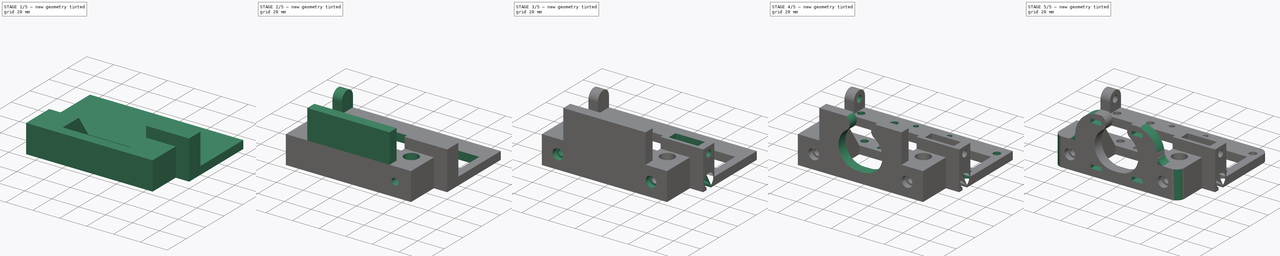
[diagram: build sequence overview — one tinted view per stage of 5, left to right]
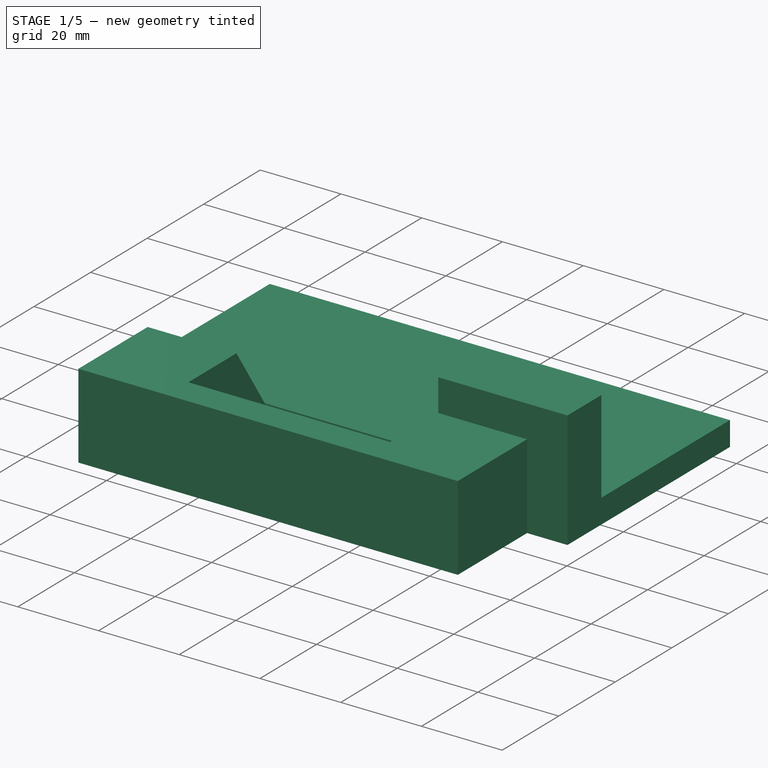
[diagram: stage 1 of 5 — iso view after this stage's code; geometry added in this stage tinted green]
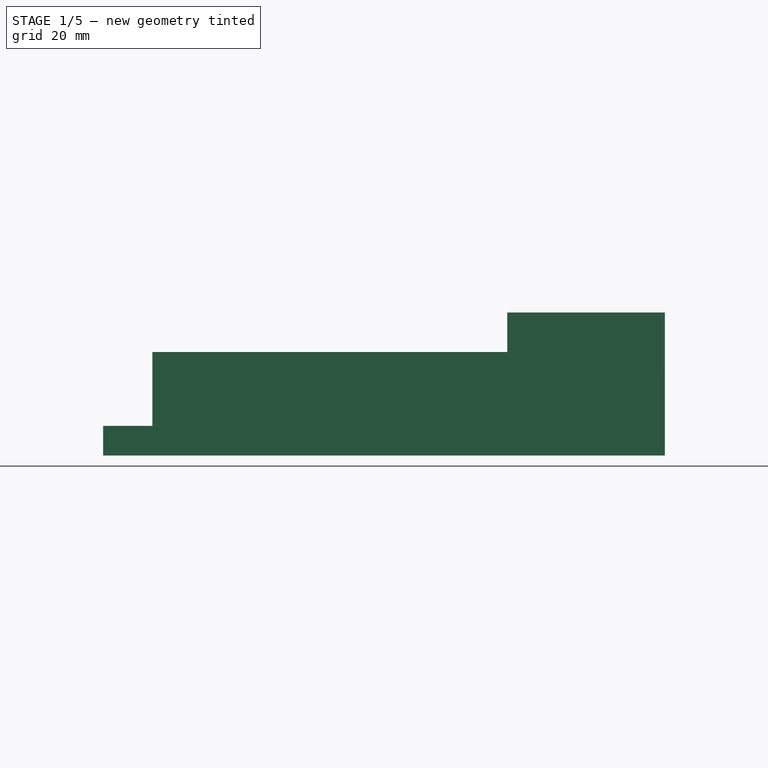
[diagram: stage 1 of 5 — front view after this stage's code; geometry added in this stage tinted green]
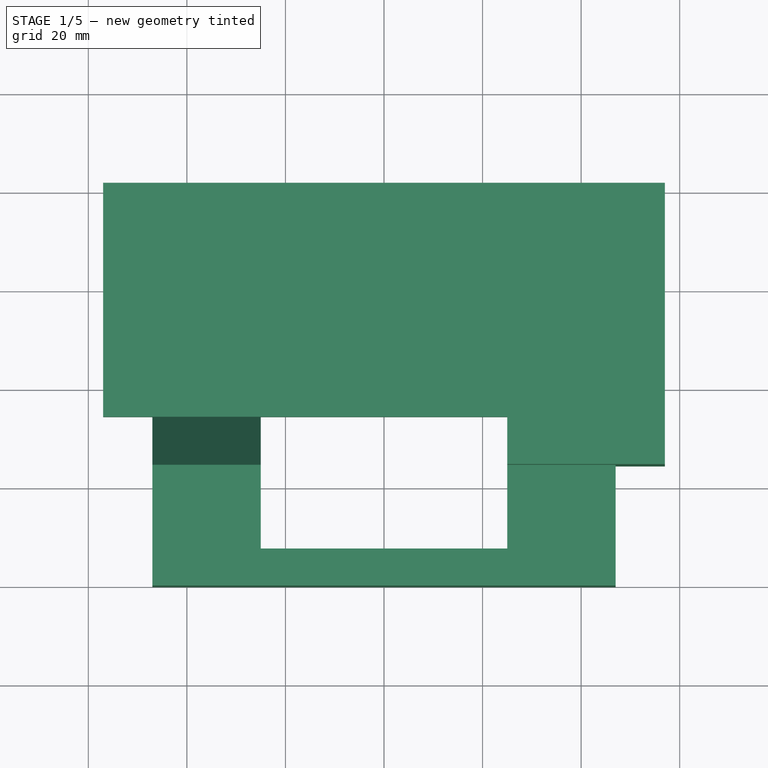
[diagram: stage 1 of 5 — top view after this stage's code; geometry added in this stage tinted green]
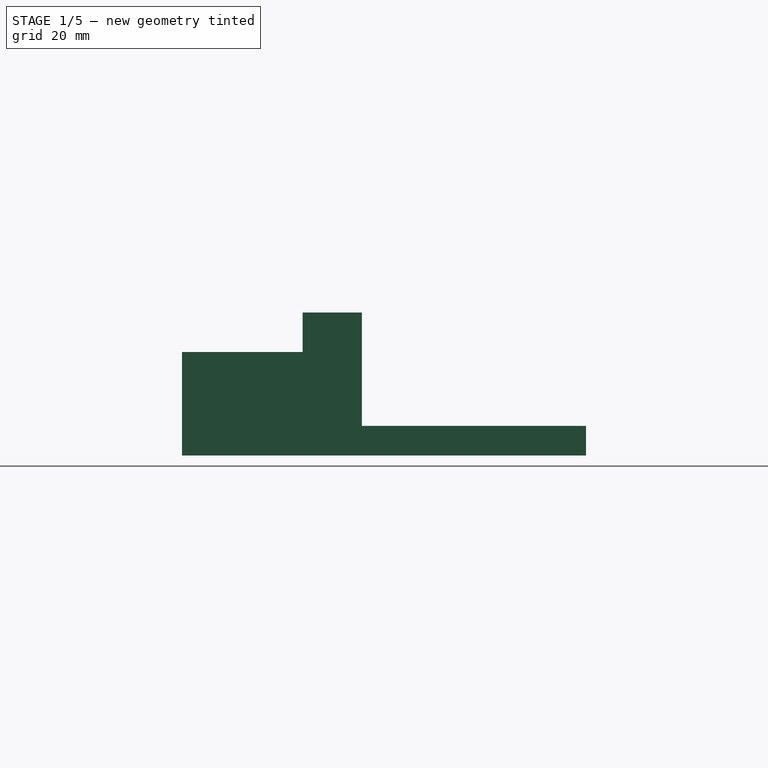
[diagram: stage 1 of 5 — right view after this stage's code; geometry added in this stage tinted green]
FCSTD DOCUMENT
Label: X_MotorForSpring
objects: Sketcher::SketchObject×20, PartDesign::Pocket×16, PartDesign::Mirrored×8, PartDesign::Pad×4, PartDesign::LinearPattern×4, PartDesign::MultiTransform×3, PartDesign::Fillet×2, Part::Feature×1
note: 78 computed .brp shape members not serialized (recipe doc carries the construction recipe); baked Part::Feature solids carry a one-line shape summary decoded from their .brp

FEATURE [Sketcher::SketchObject] Sketch
  sketch-geometry (4):
    g0: LineSegment StartX=-57 StartY=0 StartZ=0 EndX=57 EndY=0 EndZ=0
    g1: LineSegment StartX=57 StartY=0 StartZ=0 EndX=57 EndY=82 EndZ=0
    g2: LineSegment StartX=57 StartY=82 StartZ=0 EndX=-57 EndY=82 EndZ=0
    g3: LineSegment StartX=-57 StartY=82 StartZ=0 EndX=-57 EndY=0 EndZ=0
  constraints (12):
    c: Coincident(g0,g1)
    c: Coincident(g1,g2)
    c: Coincident(g2,g3)
    c: Coincident(g3,g0)
    c: Horizontal(g0)
    c: Horizontal(g2)
    c: Vertical(g1)
    c: Vertical(g3)
    c: DistanceX(g2) = -114
    c: DistanceY(g1) = 82
    c: Symmetric(g0,g0,g-2)
    c: PointOnObject(g0,g-1)
FEATURE [PartDesign::Pad] Pad
  Length = 21
  Length2 = 100
  Sketch = -> Sketch
  Type = 0
FEATURE [Sketcher::SketchObject] Sketch002  label="Sketch001"
  ExternalGeometry = -> [Pad]
  Placement = pos=(57,0,0) rot=(0.57735,0.57735,0.57735;2.0944rad)
  Support = -> Pad [Face2]
  sketch-geometry (5):
    g0: LineSegment StartX=23.8333 StartY=22 StartZ=0 EndX=83 EndY=22 EndZ=0
    g1: LineSegment StartX=83 StartY=22 StartZ=0 EndX=83 EndY=6 EndZ=0
    g2: LineSegment StartX=83 StartY=6 StartZ=0 EndX=34.5 EndY=6 EndZ=0
    g3: LineSegment StartX=23.8333 StartY=22 StartZ=0 EndX=34.5 EndY=6 EndZ=0
    g4: GeomPoint [constr] X=24.5 Y=21 Z=0
  constraints (14):
    c: Coincident(g0,g1)
    c: Coincident(g1,g2)
    c: Horizontal(g0)
    c: Horizontal(g2)
    c: Vertical(g1)
    c: Coincident(g2,g3)
    c: DistanceY(g-3,g1) = 6
    c: DistanceX(g-3,g2) = -47.5
    c: DistanceX(g-3,g0) = 1
    c: DistanceY(g0,g-3) = -1
    c: Coincident(g3,g0)
    c: PointOnObject(g4,g3)
    c: DistanceX(g4,g2) = 10
    c: DistanceY(g-1,g4) = 21
FEATURE [PartDesign::Pocket] Pocket
  Length = 5
  Sketch = -> Sketch002
  Type = 1
FEATURE [Sketcher::SketchObject] Sketch011
  ExternalGeometry = -> [Pocket]
  Placement = pos=(0,0,21) rot=(0,0,1;0rad)
  Support = -> Pocket [Face5]
  sketch-geometry (4):
    g0: LineSegment StartX=47 StartY=34.5 StartZ=0 EndX=58 EndY=34.5 EndZ=0
    g1: LineSegment StartX=58 StartY=34.5 StartZ=0 EndX=58 EndY=-1 EndZ=0
    g2: LineSegment StartX=58 StartY=-1 StartZ=0 EndX=47 EndY=-1 EndZ=0
    g3: LineSegment StartX=47 StartY=-1 StartZ=0 EndX=47 EndY=34.5 EndZ=0
  constraints (12):
    c: Coincident(g0,g1)
    c: Coincident(g1,g2)
    c: Coincident(g2,g3)
    c: Coincident(g3,g0)
    c: Horizontal(g0)
    c: Horizontal(g2)
    c: Vertical(g1)
    c: Vertical(g3)
    c: PointOnObject(g0,g-3)
    c: DistanceX(g2,g-4) = 10
    c: DistanceX(g-3,g0) = 1
    c: DistanceY(g-4,g1) = -1
FEATURE [PartDesign::Pocket] Pocket001
  Length = 5
  Sketch = -> Sketch011
  Type = 1
FEATURE [PartDesign::Mirrored] Mirrored
  Originals = -> [Pocket001]
  StdMirrorPlane = YZ
FEATURE [Sketcher::SketchObject] Sketch003
  ExternalGeometry = -> [Mirrored]
  Placement = pos=(0,0,21) rot=(0,0,1;0rad)
  Support = -> Mirrored [Face12]
  sketch-geometry (4):
    g0: LineSegment StartX=-25 StartY=34.5 StartZ=0 EndX=25 EndY=34.5 EndZ=0
    g1: LineSegment StartX=25 StartY=34.5 StartZ=0 EndX=25 EndY=7.5 EndZ=0
    g2: LineSegment StartX=25 StartY=7.5 StartZ=0 EndX=-25 EndY=7.5 EndZ=0
    g3: LineSegment StartX=-25 StartY=7.5 StartZ=0 EndX=-25 EndY=34.5 EndZ=0
  constraints (12):
    c: Coincident(g0,g1)
    c: Coincident(g1,g2)
    c: Coincident(g2,g3)
    c: Coincident(g3,g0)
    c: Horizontal(g0)
    c: Horizontal(g2)
    c: Vertical(g1)
    c: Vertical(g3)
    c: Symmetric(g0,g0,g-2)
    c: DistanceX(g2) = -50
    c: PointOnObject(g0,g-3)
    c: DistanceY(g2,g-4) = -7.5
FEATURE [PartDesign::Pocket] Pocket002
  Length = 5
  Sketch = -> Sketch003
  Type = 1
FEATURE [Sketcher::SketchObject] Sketch016  label="Sketch028"
  ExternalGeometry = -> [Pocket002]
  Placement = pos=(0,0,0) rot=(1,0,0;3.14159rad)
  Support = -> Pocket002 [Face3]
  sketch-geometry (4):
    g0: LineSegment StartX=25 StartY=-24.5 StartZ=0 EndX=57 EndY=-24.5 EndZ=0
    g1: LineSegment StartX=57 StartY=-24.5 StartZ=0 EndX=57 EndY=-36.5 EndZ=0
    g2: LineSegment StartX=57 StartY=-36.5 StartZ=0 EndX=25 EndY=-36.5 EndZ=0
    g3: LineSegment StartX=25 StartY=-36.5 StartZ=0 EndX=25 EndY=-24.5 EndZ=0
  constraints (12):
    c: Coincident(g0,g1)
    c: Coincident(g1,g2)
    c: Coincident(g2,g3)
    c: Coincident(g3,g0)
    c: Horizontal(g0)
    c: Horizontal(g2)
    c: Vertical(g1)
    c: Vertical(g3)
    c: DistanceY(g1) = -12
    c: DistanceX(g0) = 32
    c: PointOnObject(g-3,g3)
    c: DistanceY(g-3,g2) = -2
FEATURE [PartDesign::Pad] Pad001
  Length = 29
  Length2 = 100
  Reversed = true
  Sketch = -> Sketch016
  Type = 0
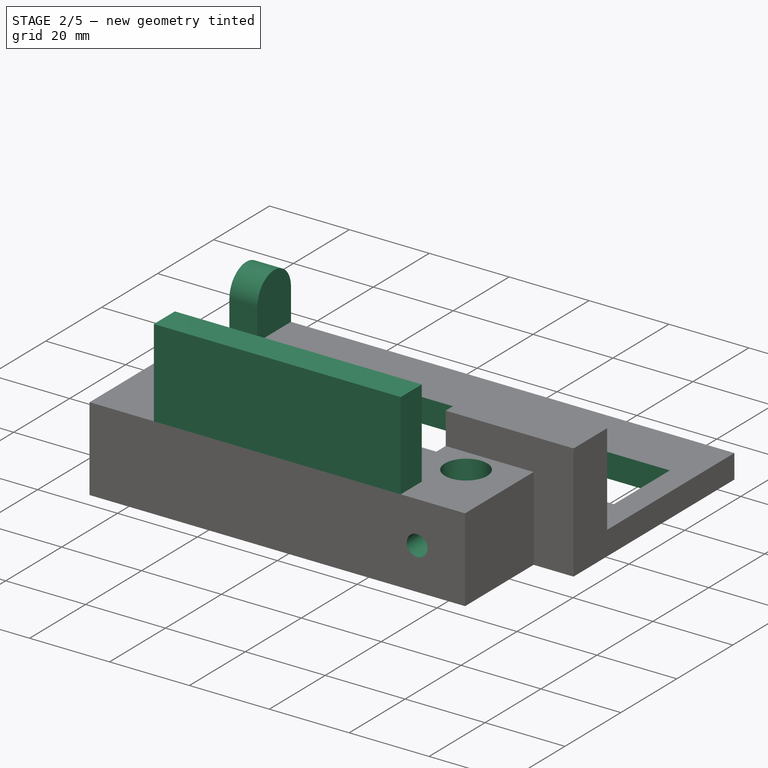
[diagram: stage 2 of 5 — iso view after this stage's code; geometry added in this stage tinted green]
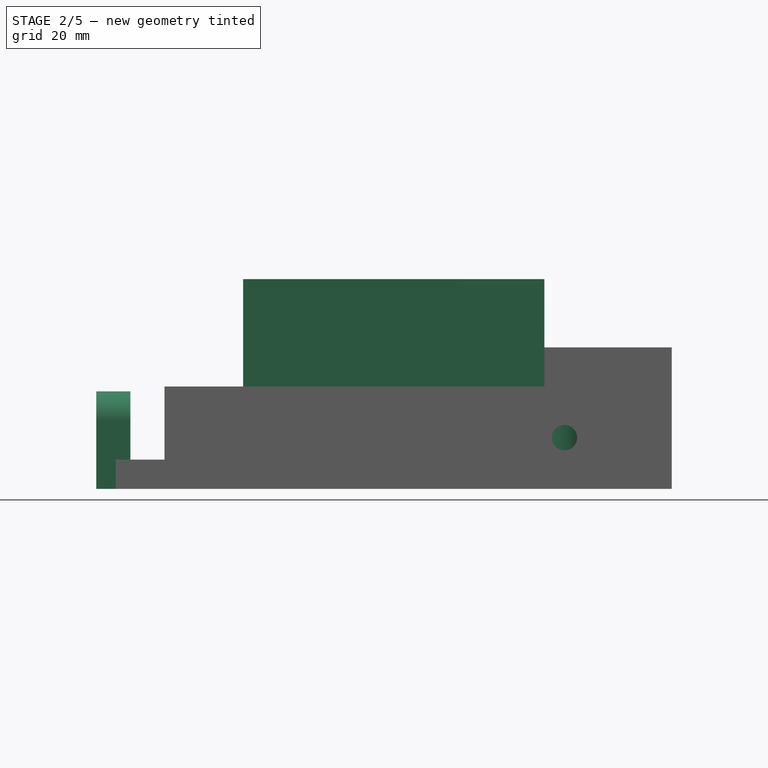
[diagram: stage 2 of 5 — front view after this stage's code; geometry added in this stage tinted green]
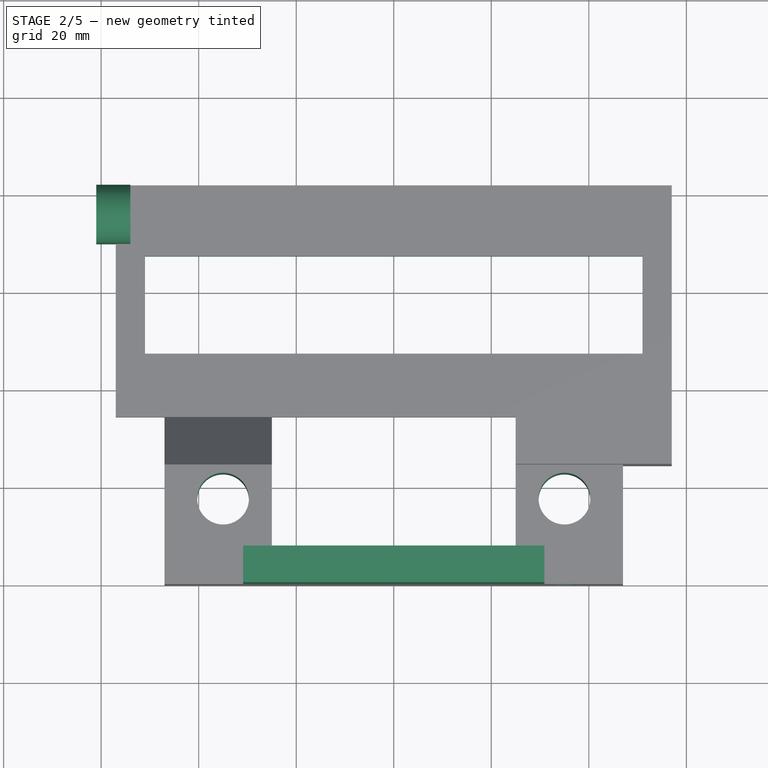
[diagram: stage 2 of 5 — top view after this stage's code; geometry added in this stage tinted green]
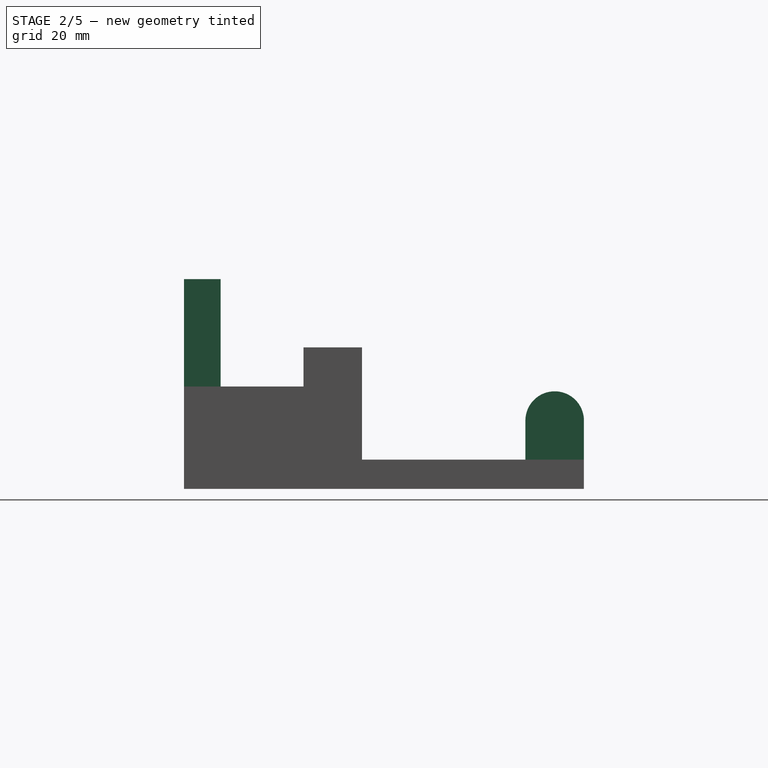
[diagram: stage 2 of 5 — right view after this stage's code; geometry added in this stage tinted green]
FEATURE [Sketcher::SketchObject] Sketch017  label="Sketch029"
  ExternalGeometry = -> [Pad001]
  Placement = pos=(0,0,21) rot=(0,0,1;0rad)
  Support = -> Pad001 [Face20]
  sketch-geometry (4):
    g0: LineSegment StartX=-30.9 StartY=0 StartZ=0 EndX=30.9 EndY=0 EndZ=0
    g1: LineSegment StartX=30.9 StartY=0 StartZ=0 EndX=30.9 EndY=7.5 EndZ=0
    g2: LineSegment StartX=30.9 StartY=7.5 StartZ=0 EndX=-30.9 EndY=7.5 EndZ=0
    g3: LineSegment StartX=-30.9 StartY=7.5 StartZ=0 EndX=-30.9 EndY=0 EndZ=0
  constraints (12):
    c: Coincident(g0,g1)
    c: Coincident(g1,g2)
    c: Coincident(g2,g3)
    c: Coincident(g3,g0)
    c: Horizontal(g0)
    c: Horizontal(g2)
    c: Vertical(g1)
    c: Vertical(g3)
    c: Symmetric(g2,g1,g-2)
    c: DistanceX(g2) = -61.8
    c: PointOnObject(g-4,g0)
    c: PointOnObject(g-3,g2)
FEATURE [PartDesign::Pad] Pad002
  Length = 22
  Length2 = 100
  Sketch = -> Sketch017
  Type = 0
FEATURE [Sketcher::SketchObject] Sketch018  label="Sketch030"
  ExternalGeometry = -> [Pad002]
  Placement = pos=(-57,0,0) rot=(0.57735,-0.57735,-0.57735;2.0944rad)
  Support = -> Pad002 [Face4]
  sketch-geometry (4):
    g0: LineSegment StartX=-82 StartY=14 StartZ=0 EndX=-82 EndY=0 EndZ=0
    g1: LineSegment StartX=-82 StartY=0 StartZ=0 EndX=-70 EndY=0 EndZ=0
    g2: LineSegment StartX=-70 StartY=0 StartZ=0 EndX=-70 EndY=14 EndZ=0
    g3: ArcOfCircle CenterX=-76 CenterY=14 CenterZ=0 NormalX=0 NormalY=0 NormalZ=1 Radius=6 StartAngle=0 EndAngle=3.1416
  constraints (12):
    c: Vertical(g0)
    c: Coincident(g0,g1)
    c: Horizontal(g1)
    c: Coincident(g1,g2)
    c: Vertical(g2)
    c: Tangent(g2,g3)
    c: Coincident(g3,g0)
    c: Tangent(g0,g3)
    c: DistanceX(g1) = 12
    c: DistanceY(g0) = -14
    c: PointOnObject(g-3,g0)
    c: PointOnObject(g1,g-1)
FEATURE [PartDesign::Pad] Pad003
  Length = 4
  Length2 = 3
  Sketch = -> Sketch018
  Type = 4
FEATURE [Sketcher::SketchObject] Sketch004
  ExternalGeometry = -> [Pad003]
  Placement = pos=(0,0,6) rot=(0,0,1;0rad)
  Support = -> Pad003 [Face4]
  sketch-geometry (4):
    g0: LineSegment StartX=-51 StartY=67.5 StartZ=0 EndX=51 EndY=67.5 EndZ=0
    g1: LineSegment StartX=51 StartY=67.5 StartZ=0 EndX=51 EndY=47.5 EndZ=0
    g2: LineSegment StartX=51 StartY=47.5 StartZ=0 EndX=-51 EndY=47.5 EndZ=0
    g3: LineSegment StartX=-51 StartY=47.5 StartZ=0 EndX=-51 EndY=67.5 EndZ=0
  constraints (12):
    c: Coincident(g0,g1)
    c: Coincident(g1,g2)
    c: Coincident(g2,g3)
    c: Coincident(g3,g0)
    c: Horizontal(g0)
    c: Horizontal(g2)
    c: Vertical(g1)
    c: Vertical(g3)
    c: Symmetric(g2,g1,g-2)
    c: DistanceX(g0) = 102
    c: DistanceY(g1) = -20
    c: DistanceY(g0,g-3) = 14.5
FEATURE [PartDesign::Pocket] Pocket003
  Length = 5
  Sketch = -> Sketch004
  Type = 1
FEATURE [Sketcher::SketchObject] Sketch005
  ExternalGeometry = -> [Pocket003]
  Placement = pos=(0,0,21) rot=(0,0,1;0rad)
  Support = -> Pocket003 [Face32]
  sketch-geometry (1):
    g0: Circle CenterX=35 CenterY=17.5 CenterZ=0 NormalX=0 NormalY=0 NormalZ=1 Radius=5.3
  constraints (3):
    c: Radius(g0) = 5.3
    c: DistanceX(g0,g-3) = 12
    c: DistanceY(g0,g-3) = -17.5
FEATURE [PartDesign::Pocket] Pocket004
  Length = 5
  Sketch = -> Sketch005
  Type = 1
FEATURE [PartDesign::Mirrored] Mirrored001
  Originals = -> [Pocket004]
  StdMirrorPlane = YZ
FEATURE [Sketcher::SketchObject] Sketch013  label="Sketch008"
  ExternalGeometry = -> [Mirrored001]
  Placement = pos=(0,0,0) rot=(1,0,0;1.5708rad)
  Support = -> Mirrored001 [Face18]
  sketch-geometry (2):
    g0: Circle CenterX=35 CenterY=10.5 CenterZ=0 NormalX=0 NormalY=0 NormalZ=1 Radius=2.6
    g1: LineSegment [constr] StartX=35 StartY=10.5 StartZ=0 EndX=47 EndY=10.5 EndZ=0
  constraints (5):
    c: Radius(g0) = 2.6
    c: Coincident(g1,g0)
    c: Horizontal(g1)
    c: Symmetric(g-3,g-3,g1)
    c: DistanceX(g1) = 12
FEATURE [PartDesign::Pocket] Pocket005
  Length = 15
  Sketch = -> Sketch013
  Type = 0
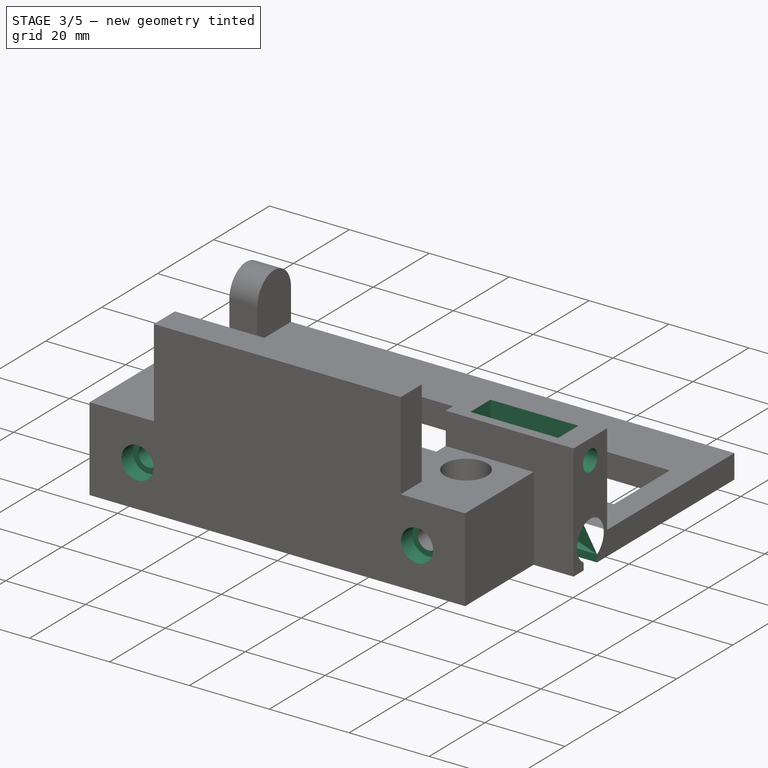
[diagram: stage 3 of 5 — iso view after this stage's code; geometry added in this stage tinted green]
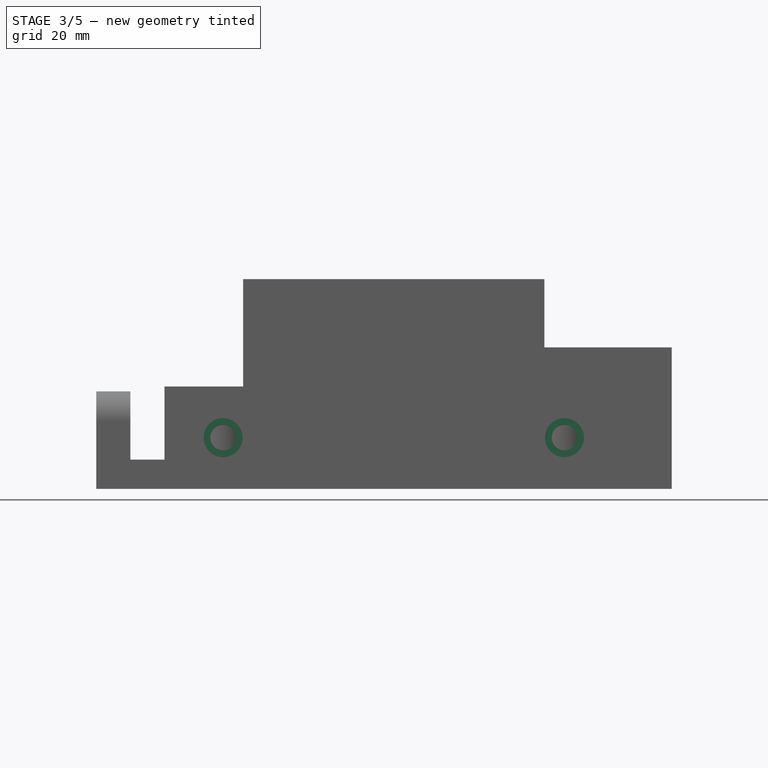
[diagram: stage 3 of 5 — front view after this stage's code; geometry added in this stage tinted green]
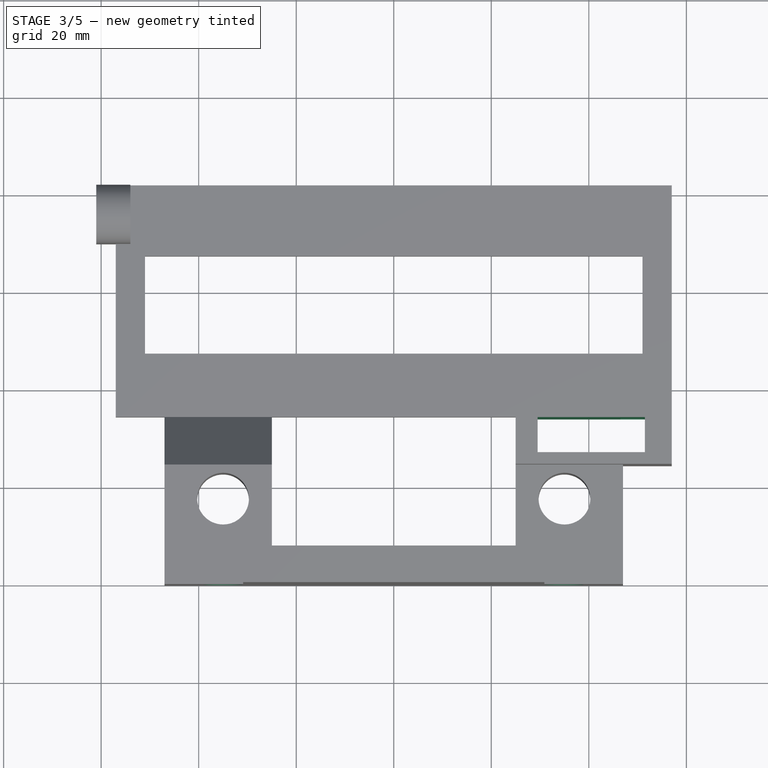
[diagram: stage 3 of 5 — top view after this stage's code; geometry added in this stage tinted green]
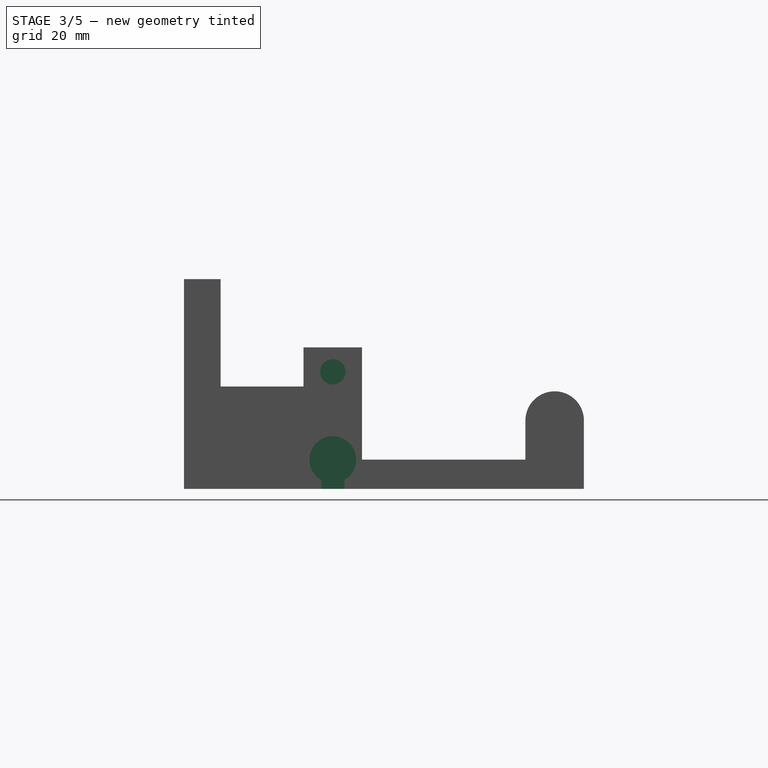
[diagram: stage 3 of 5 — right view after this stage's code; geometry added in this stage tinted green]
FEATURE [PartDesign::Mirrored] Mirrored002
  Originals = -> [Pocket005]
  StdMirrorPlane = YZ
FEATURE [Sketcher::SketchObject] Sketch012  label="Sketch007"
  ExternalGeometry = -> [Mirrored002]
  Placement = pos=(0,0,0) rot=(1,0,0;1.5708rad)
  Support = -> Mirrored002 [Face18]
  sketch-geometry (1):
    g0: Circle CenterX=35 CenterY=10.5 CenterZ=0 NormalX=0 NormalY=0 NormalZ=1 Radius=4
  constraints (2):
    c: Radius(g0) = 4
    c: Coincident(g-3,g0)
FEATURE [PartDesign::Pocket] Pocket006
  Length = 4
  Sketch = -> Sketch012
  Type = 0
FEATURE [PartDesign::Mirrored] Mirrored003
  Originals = -> [Pocket006]
  StdMirrorPlane = YZ
FEATURE [Sketcher::SketchObject] Sketch019  label="Sketch031"
  ExternalGeometry = -> [Mirrored003]
  Placement = pos=(0,0,29) rot=(0,0,1;0rad)
  Support = -> Mirrored003 [Face45]
  sketch-geometry (5):
    g0: LineSegment StartX=29.5 StartY=34.1 StartZ=0 EndX=51.5 EndY=34.1 EndZ=0
    g1: LineSegment StartX=51.5 StartY=34.1 StartZ=0 EndX=51.5 EndY=26.9 EndZ=0
    g2: LineSegment StartX=51.5 StartY=26.9 StartZ=0 EndX=29.5 EndY=26.9 EndZ=0
    g3: LineSegment StartX=29.5 StartY=26.9 StartZ=0 EndX=29.5 EndY=34.1 EndZ=0
    g4: LineSegment [constr] StartX=51.5 StartY=30.5 StartZ=0 EndX=57 EndY=30.5 EndZ=0
  constraints (14):
    c: Coincident(g0,g1)
    c: Coincident(g1,g2)
    c: Coincident(g2,g3)
    c: Coincident(g3,g0)
    c: Horizontal(g0)
    c: Horizontal(g2)
    c: Vertical(g1)
    c: Vertical(g3)
    c: DistanceX(g0) = 22
    c: DistanceY(g3) = 7.2
    c: Horizontal(g4)
    c: Symmetric(g1,g1,g4)
    c: DistanceX(g4) = 5.5
    c: Symmetric(g-3,g-3,g4)
FEATURE [PartDesign::Pocket] Pocket007
  Length = 5
  Sketch = -> Sketch019
  Type = 1
FEATURE [Sketcher::SketchObject] Sketch023  label="Sketch035"
  ExternalGeometry = -> [Pocket007]
  Placement = pos=(57,0,0) rot=(0.57735,0.57735,0.57735;2.0944rad)
  Support = -> Pocket007 [Face29]
  sketch-geometry (5):
    g0: ArcOfCircle CenterX=30.5 CenterY=6 CenterZ=0 NormalX=0 NormalY=0 NormalZ=1 Radius=4.8 StartAngle=5.23599 EndAngle=10.472
    g1: LineSegment [constr] StartX=30.5 StartY=6 StartZ=0 EndX=30.5 EndY=29 EndZ=0
    g2: LineSegment StartX=32.9 StartY=1.84308 StartZ=0 EndX=32.9 EndY=0 EndZ=0
    g3: LineSegment StartX=32.9 StartY=0 StartZ=0 EndX=28.1 EndY=0 EndZ=0
    g4: LineSegment StartX=28.1 StartY=0 StartZ=0 EndX=28.1 EndY=1.84308 EndZ=0
  constraints (15):
    c: Coincident(g1,g0)
    c: Vertical(g1)
    c: Coincident(g2,g3)
    c: Coincident(g3,g4)
    c: Horizontal(g3)
    c: Vertical(g2)
    c: Vertical(g4)
    c: Coincident(g0,g2)
    c: Coincident(g0,g4)
    c: Equal(g4,g2)
    c: DistanceX(g3) = -4.8
    c: Radius(g0) = 4.8
    c: Symmetric(g-3,g-3,g1)
    c: PointOnObject(g3,g-1)
    c: DistanceY(g0) = 6
FEATURE [PartDesign::Pocket] Pocket008
  Length = 10.5
  Sketch = -> Sketch023
  Type = 0
FEATURE [Sketcher::SketchObject] Sketch022  label="Sketch034"
  ExternalGeometry = -> [Pocket008]
  Placement = pos=(57,0,0) rot=(0.57735,0.57735,0.57735;2.0944rad)
  Support = -> Pocket008 [Face29]
  sketch-geometry (2):
    g0: Circle CenterX=30.5 CenterY=24 CenterZ=0 NormalX=0 NormalY=0 NormalZ=1 Radius=2.6
    g1: LineSegment [constr] StartX=30.5 StartY=24 StartZ=0 EndX=30.5 EndY=29 EndZ=0
  constraints (5):
    c: Radius(g0) = 2.6
    c: Coincident(g1,g0)
    c: Vertical(g1)
    c: Symmetric(g-3,g-3,g1)
    c: DistanceY(g-3,g0) = -5
FEATURE [PartDesign::Pocket] Pocket009
  Length = 6
  Sketch = -> Sketch022
  Type = 0
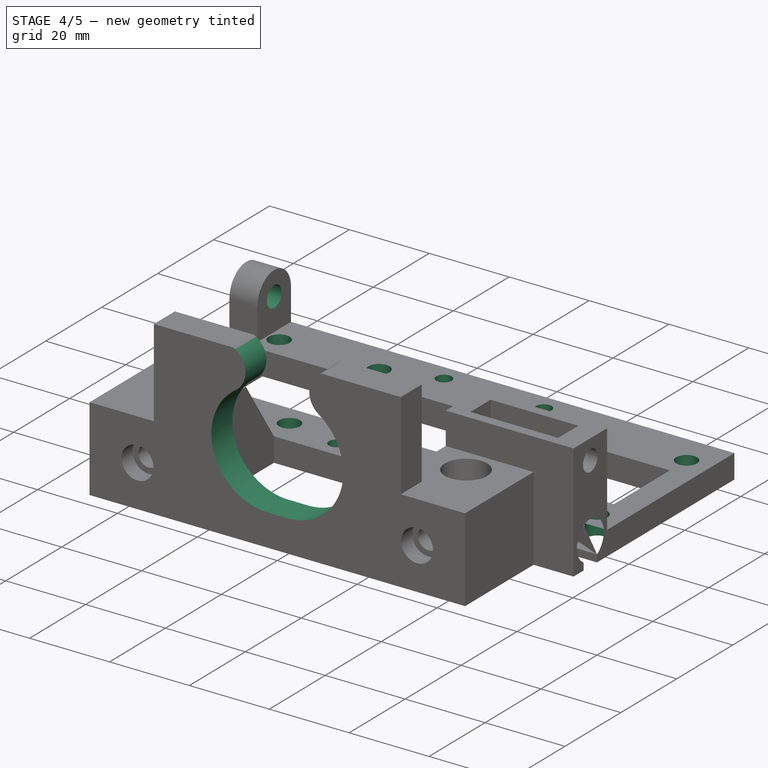
[diagram: stage 4 of 5 — iso view after this stage's code; geometry added in this stage tinted green]
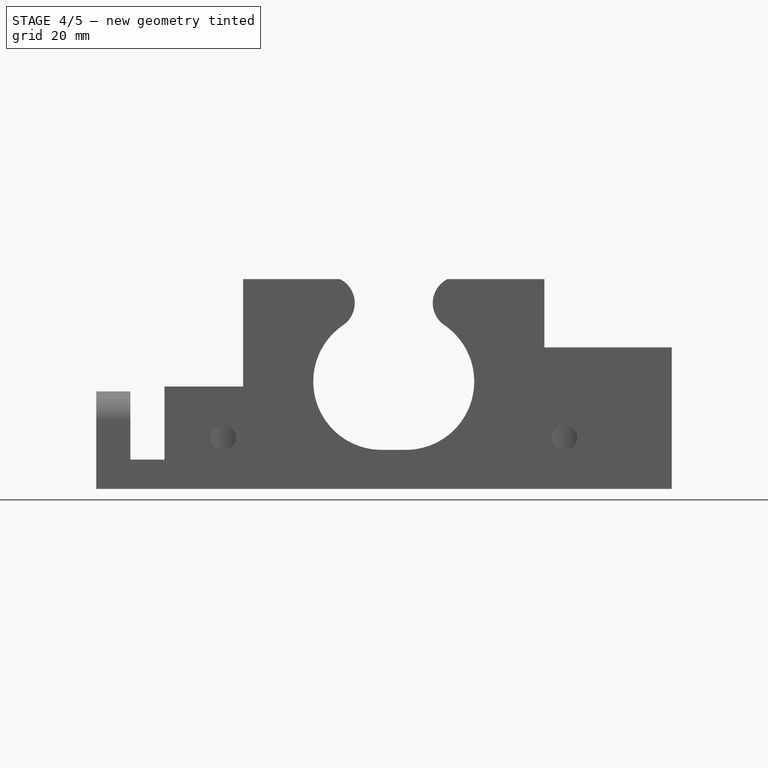
[diagram: stage 4 of 5 — front view after this stage's code; geometry added in this stage tinted green]
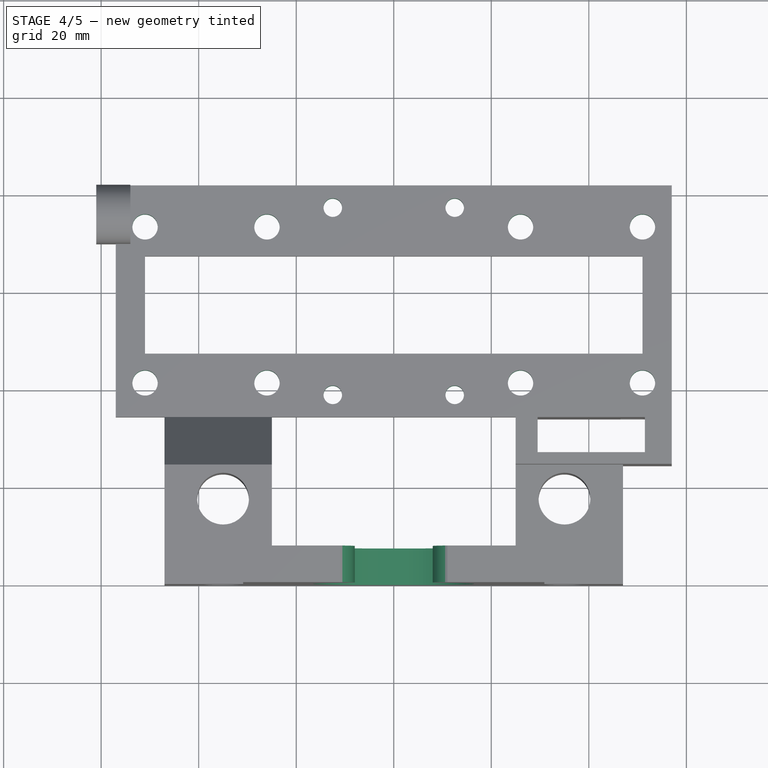
[diagram: stage 4 of 5 — top view after this stage's code; geometry added in this stage tinted green]
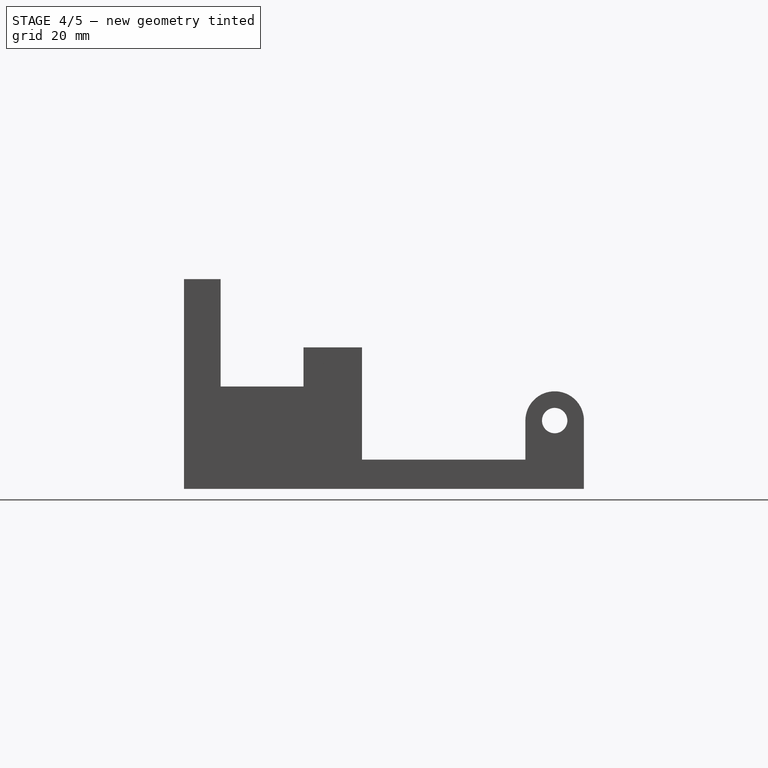
[diagram: stage 4 of 5 — right view after this stage's code; geometry added in this stage tinted green]
FEATURE [Sketcher::SketchObject] Sketch021  label="Sketch033"
  ExternalGeometry = -> [Pocket009]
  Placement = pos=(-61,0,0) rot=(0.57735,-0.57735,-0.57735;2.0944rad)
  Support = -> Pocket009 [Face50]
  sketch-geometry (1):
    g0: Circle CenterX=-76 CenterY=14 CenterZ=0 NormalX=0 NormalY=0 NormalZ=1 Radius=2.6
  constraints (2):
    c: Radius(g0) = 2.6
    c: Coincident(g-3,g0)
FEATURE [PartDesign::Pocket] Pocket010
  Length = 5
  Sketch = -> Sketch021
  Type = 1
FEATURE [Sketcher::SketchObject] Sketch014  label="Sketch026"
  ExternalGeometry = -> [Pocket010]
  Placement = pos=(0,0,6) rot=(0,0,1;0rad)
  Support = -> Pocket010 [Face4]
  sketch-geometry (1):
    g0: Circle CenterX=51 CenterY=73.5 CenterZ=0 NormalX=0 NormalY=0 NormalZ=1 Radius=2.6
  constraints (3):
    c: Radius(g0) = 2.6
    c: DistanceY(g0,g-3) = 8.5
    c: DistanceX(g0,g-3) = 6
FEATURE [PartDesign::Pocket] Pocket011
  Length = 5
  Sketch = -> Sketch014
  Type = 1
FEATURE [PartDesign::LinearPattern] LinearPattern
  Direction = -> Pocket011 [Edge3]
  Length = 32
  Occurrences = 2
FEATURE [PartDesign::LinearPattern] LinearPattern001
  Direction = -> Pocket011 [Edge31]
  Length = 25
  Occurrences = 2
FEATURE [PartDesign::Mirrored] Mirrored004
  StdMirrorPlane = YZ
FEATURE [PartDesign::MultiTransform] MultiTransform
  Originals = -> [Pocket011]
  Transformations = -> [LinearPattern,LinearPattern001,Mirrored004]
FEATURE [Sketcher::SketchObject] Sketch015  label="Sketch027"
  ExternalGeometry = -> [MultiTransform]
  Placement = pos=(0,0,6) rot=(0,0,1;0rad)
  Support = -> MultiTransform [Face4]
  sketch-geometry (1):
    g0: Circle CenterX=12.5 CenterY=77.45 CenterZ=0 NormalX=0 NormalY=0 NormalZ=1 Radius=1.9
  constraints (3):
    c: Radius(g0) = 1.9
    c: DistanceY(g0,g-3) = 4.55
    c: DistanceX(g0,g-3) = 44.5
FEATURE [PartDesign::Pocket] Pocket012
  Length = 5
  Sketch = -> Sketch015
  Type = 1
FEATURE [PartDesign::LinearPattern] LinearPattern002
  Direction = -> Pocket012 [Edge3]
  Length = 38.4
  Occurrences = 2
FEATURE [PartDesign::Mirrored] Mirrored005
  StdMirrorPlane = YZ
FEATURE [PartDesign::MultiTransform] MultiTransform001
  Originals = -> [Pocket012]
  Transformations = -> [LinearPattern002,Mirrored005]
FEATURE [Sketcher::SketchObject] Sketch020  label="Sketch032"
  ExternalGeometry = -> [MultiTransform001]
  Placement = pos=(0,0,0) rot=(1,0,0;1.5708rad)
  Support = -> MultiTransform001 [Face57]
  sketch-geometry (7):
    g0: ArcOfCircle CenterX=-13.4998 CenterY=38.1012 CenterZ=0 NormalX=0 NormalY=0 NormalZ=1 Radius=5.49978 StartAngle=5.31173 EndAngle=7.38214
    g1: LineSegment StartX=-11 StartY=43 StartZ=0 EndX=11 EndY=43 EndZ=0
    g2: ArcOfCircle CenterX=13.4998 CenterY=38.1012 CenterZ=0 NormalX=0 NormalY=0 NormalZ=1 Radius=5.49978 StartAngle=2.04263 EndAngle=4.11305
    g3: LineSegment [constr] StartX=-13.4998 StartY=38.1012 StartZ=0 EndX=-8 EndY=38.1012 EndZ=0
    g4: ArcOfCircle CenterX=-2.50004 CenterY=22 CenterZ=0 NormalX=0 NormalY=0 NormalZ=1 Radius=14 StartAngle=2.17013 EndAngle=4.71239
    g5: LineSegment StartX=-2.5 StartY=8 StartZ=0 EndX=2.5 EndY=8 EndZ=0
    g6: ArcOfCircle CenterX=2.50004 CenterY=22 CenterZ=0 NormalX=0 NormalY=0 NormalZ=1 Radius=14 StartAngle=4.71239 EndAngle=7.25464
  constraints (23):
    c: Coincident(g0,g1)
    c: Coincident(g2,g1)
    c: Coincident(g3,g0)
    c: Horizontal(g3)
    c: PointOnObject(g3,g0)
    c: Symmetric(g0,g1,g-2)
    c: DistanceX(g1) = 22
    c: PointOnObject(g-3,g1)
    c: Symmetric(g0,g2,g-2)
    c: DistanceX(g-1,g3) = -8
    c: Coincident(g4,g0)
    c: Horizontal(g5)
    c: DistanceX(g5) = 5
    c: DistanceY(g4) = 22
    c: Coincident(g6,g2)
    c: Tangent(g6,g2)
    c: Equal(g6,g4)
    c: Symmetric(g5,g5,g-2)
    c: Coincident(g5,g4)
    c: Coincident(g6,g5)
    c: Tangent(g4,g0)
    c: Radius(g4) = 14
    c: Tangent(g6,g5)
FEATURE [PartDesign::Pocket] Pocket013
  Length = 8
  Sketch = -> Sketch020
  Type = 0
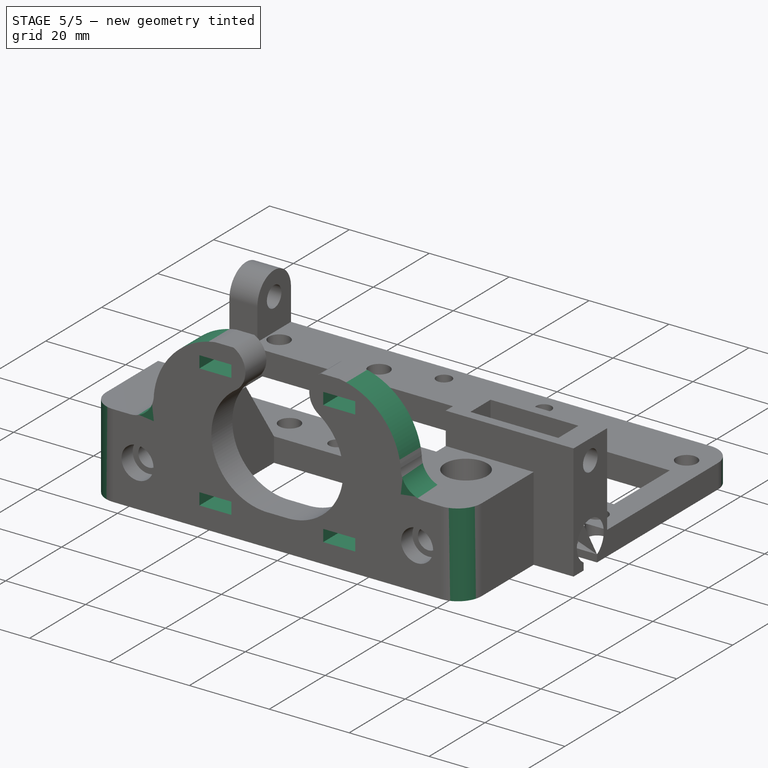
[diagram: stage 5 of 5 — iso view after this stage's code; geometry added in this stage tinted green]
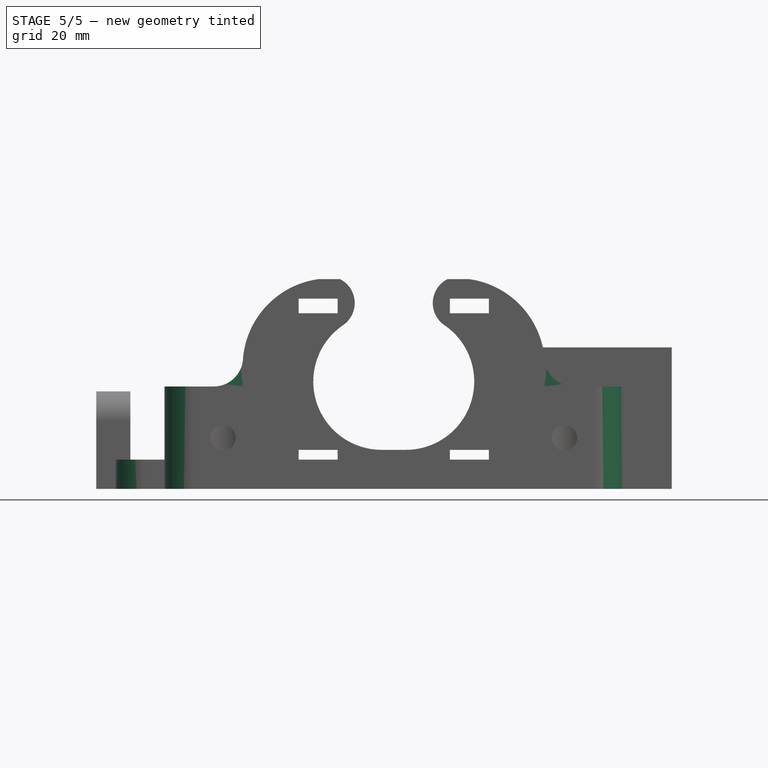
[diagram: stage 5 of 5 — front view after this stage's code; geometry added in this stage tinted green]
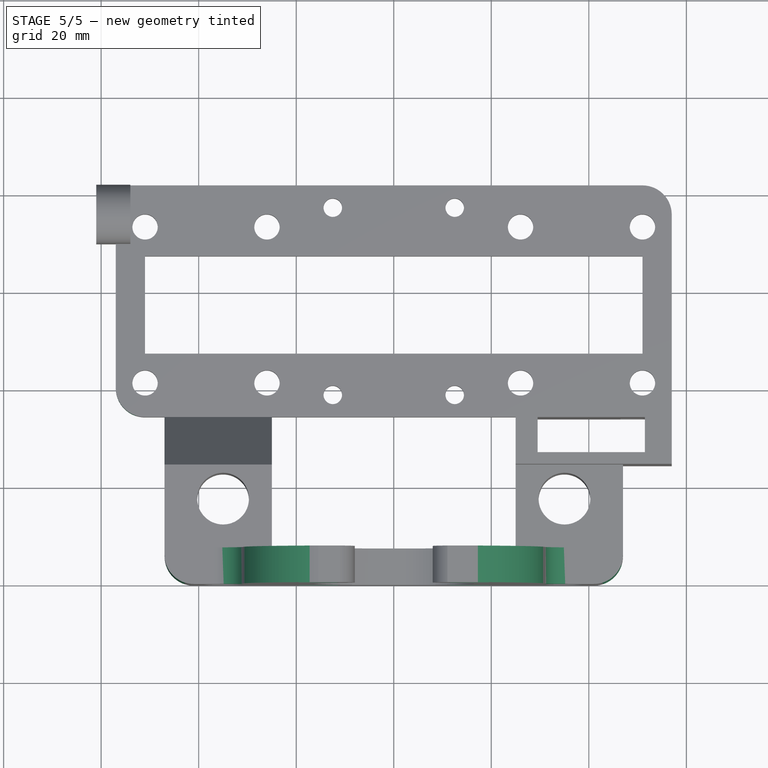
[diagram: stage 5 of 5 — top view after this stage's code; geometry added in this stage tinted green]
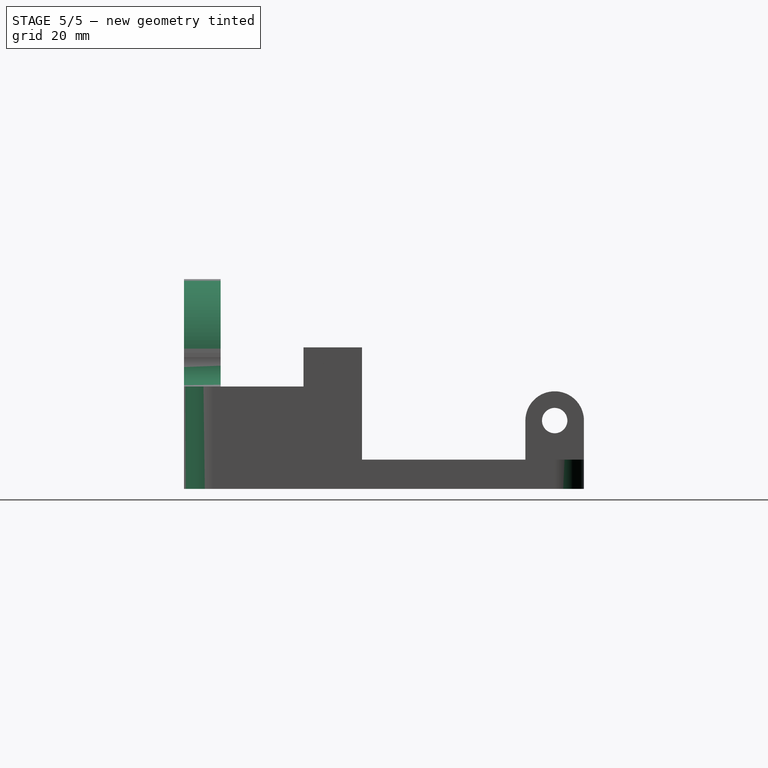
[diagram: stage 5 of 5 — right view after this stage's code; geometry added in this stage tinted green]
FEATURE [Sketcher::SketchObject] Sketch024  label="Sketch036"
  ExternalGeometry = -> [Pocket013]
  Placement = pos=(0,0,0) rot=(1,0,0;1.5708rad)
  Support = -> Pocket013 [Face30]
  sketch-geometry (6):
    g0: LineSegment StartX=11.5 StartY=5 StartZ=0 EndX=19.5 EndY=5 EndZ=0
    g1: LineSegment StartX=19.5 StartY=5 StartZ=0 EndX=19.5 EndY=8 EndZ=0
    g2: LineSegment StartX=19.5 StartY=8 StartZ=0 EndX=11.5 EndY=8 EndZ=0
    g3: LineSegment StartX=11.5 StartY=8 StartZ=0 EndX=11.5 EndY=5 EndZ=0
    g4: LineSegment [constr] StartX=0 StartY=22 StartZ=0 EndX=15.5 EndY=6.5 EndZ=0
    g5: LineSegment [constr] StartX=-2.50004 StartY=22 StartZ=0 EndX=0 EndY=22 EndZ=0
  constraints (17):
    c: Coincident(g0,g1)
    c: Coincident(g1,g2)
    c: Coincident(g2,g3)
    c: Coincident(g3,g0)
    c: Horizontal(g0)
    c: Horizontal(g2)
    c: Vertical(g1)
    c: Vertical(g3)
    c: DistanceY(g3) = -3
    c: DistanceX(g0) = 8
    c: Symmetric(g2,g0,g4)
    c: DistanceX(g4) = 15.5
    c: DistanceY(g4) = -15.5
    c: PointOnObject(g4,g-2)
    c: Coincident(g5,g-3)
    c: Coincident(g5,g4)
    c: Horizontal(g5)
FEATURE [PartDesign::Pocket] Pocket014
  Length = 8
  Sketch = -> Sketch024
  Type = 0
FEATURE [PartDesign::LinearPattern] LinearPattern003
  Direction = -> Pocket014 [Edge244]
  Length = 31
  Occurrences = 2
FEATURE [PartDesign::Mirrored] Mirrored006
  StdMirrorPlane = YZ
FEATURE [PartDesign::MultiTransform] MultiTransform002
  Originals = -> [Pocket014]
  Transformations = -> [LinearPattern003,Mirrored006]
FEATURE [PartDesign::Fillet] Fillet
  Base = -> MultiTransform002 [Edge209,Edge203]
  Radius = 6
FEATURE [Sketcher::SketchObject] Sketch025  label="Sketch037"
  ExternalGeometry = -> [Fillet]
  Placement = pos=(0,0,0) rot=(1,0,0;1.5708rad)
  Support = -> Fillet [Face11]
  sketch-geometry (5):
    g0: ArcOfCircle CenterX=12.9927 CenterY=25.1755 CenterZ=0 NormalX=0 NormalY=0 NormalZ=1 Radius=18 StartAngle=0.101537 EndAngle=1.43105
    g1: LineSegment StartX=15.5 StartY=44 StartZ=0 EndX=31.9 EndY=44 EndZ=0
    g2: LineSegment StartX=31.9 StartY=44 StartZ=0 EndX=31.9 EndY=27 EndZ=0
    g3: LineSegment StartX=31.9 StartY=27 StartZ=0 EndX=30.9 EndY=27 EndZ=0
    g4: LineSegment StartX=15.5 StartY=43 StartZ=0 EndX=15.5 EndY=44 EndZ=0
  constraints (15):
    c: Radius(g0) = 18
    c: Coincident(g1,g2)
    c: Coincident(g2,g3)
    c: Coincident(g4,g1)
    c: Horizontal(g1)
    c: Horizontal(g3)
    c: Vertical(g2)
    c: Vertical(g4)
    c: Coincident(g4,g0)
    c: Coincident(g3,g0)
    c: Equal(g4,g3)
    c: DistanceX(g1) = 15.5
    c: DistanceY(g4) = 1
    c: Coincident(g0,g-4)
    c: PointOnObject(g0,g-3)
FEATURE [PartDesign::Pocket] Pocket015
  Length = 8
  Sketch = -> Sketch025
  Type = 0
FEATURE [PartDesign::Mirrored] Mirrored007
  Originals = -> [Pocket015]
  StdMirrorPlane = YZ
FEATURE [PartDesign::Fillet] Fillet001
  Base = -> Mirrored007 [Edge7,Edge3,Edge207,Edge158]
  Radius = 6
FEATURE [Part::Feature] Fillet001001  label="PartRefine"
  shape: bbox 118 x 82 x 43 mm, 91 faces (baked)
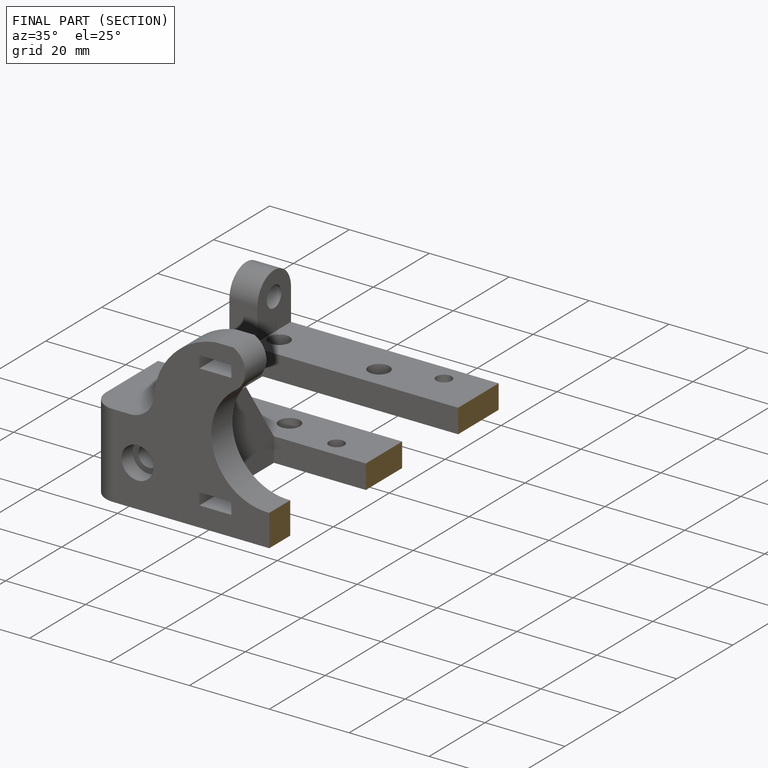
[diagram: finished part — half-section view (interior)]
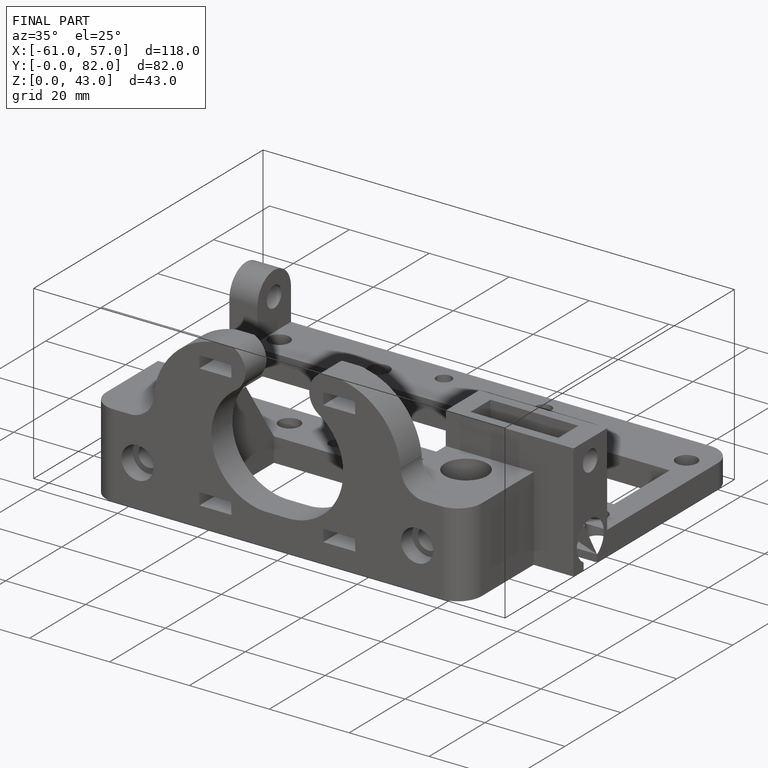
[diagram: finished part — iso view with bounding-box wireframe]
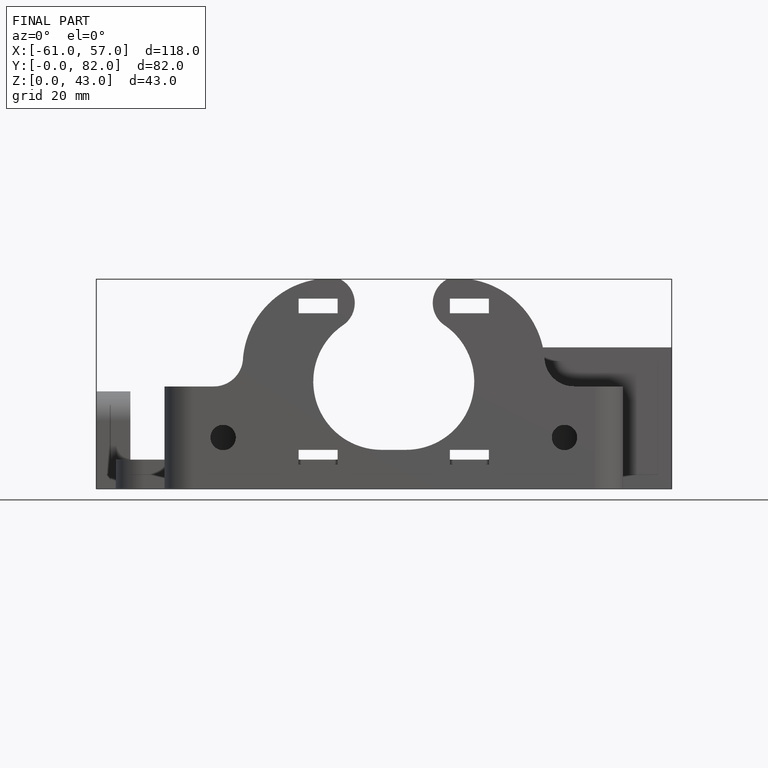
[diagram: finished part — front view with bounding-box wireframe]
